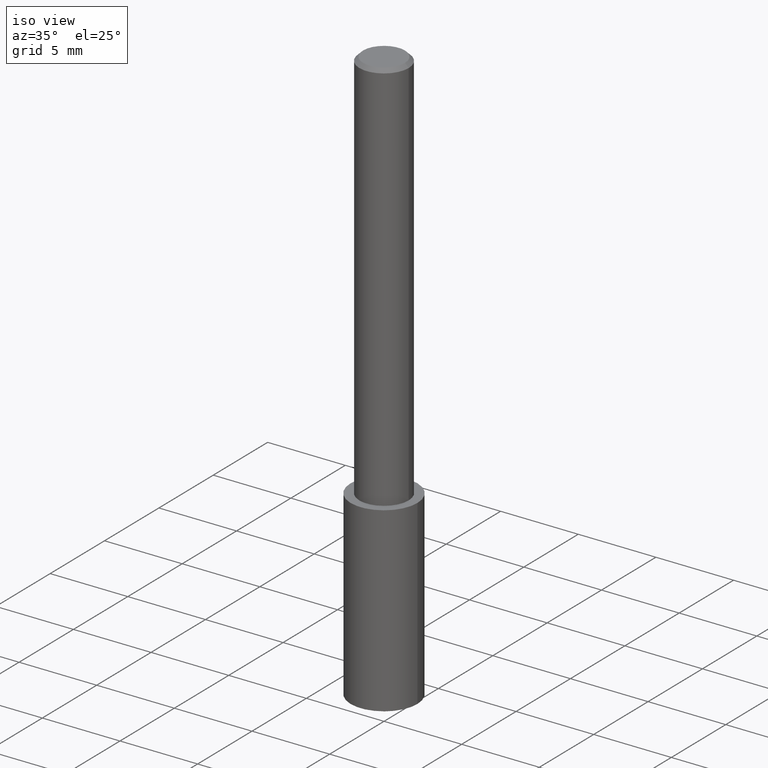
[diagram: clean part render]
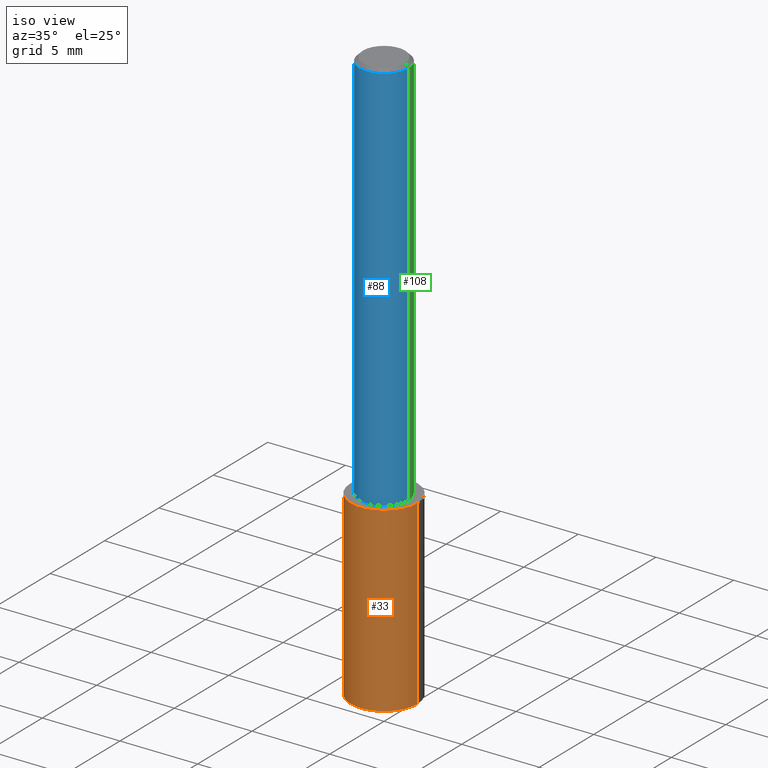
[diagram: same view with three faces highlighted in distinct colors, each labeled with its STEP entity id]
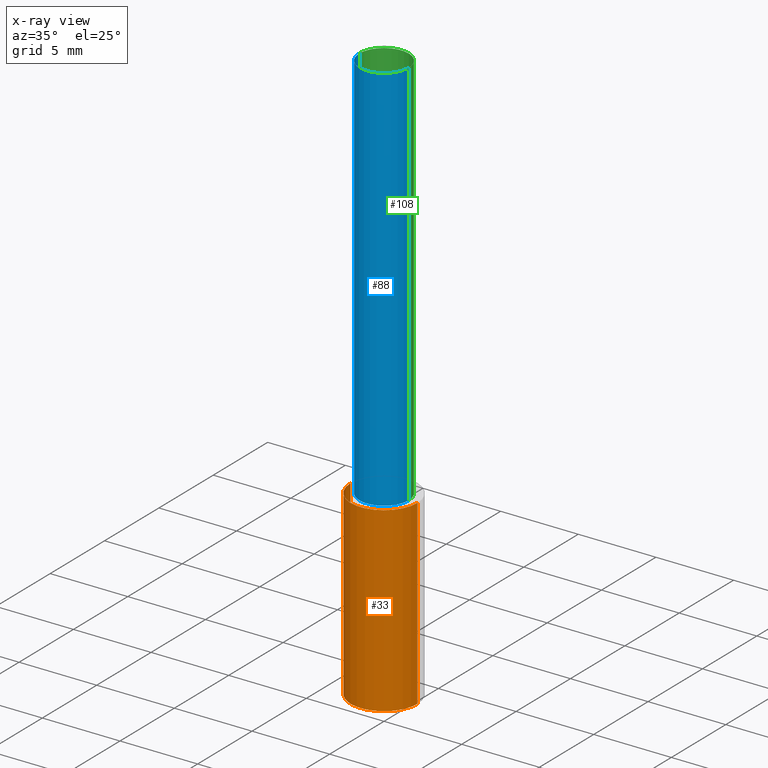
[diagram: x-ray of the same camera — body ghosted, the three highlighted faces saturated]
A machine part, iso view with three faces highlighted in distinct colors.
The next image is the same camera in x-ray (body ghosted, the three faces saturated) — at least one of them is partly hidden behind the body in this view.
Their STEP definitions:

[orange] entity #33 — the highlighted cylindrical surface (partial cylindrical patch) has radius 2.1501 mm, axis along (-0, 0, 1).
#10 = ORIENTED_EDGE ( 'NONE', *, *, #247, .F. ) ;
#14 = CARTESIAN_POINT ( 'NONE',  ( 3.571673357840160726E-29, -5.099402963473365069E-15, -1.460527056737179308 ) ) ;
#25 = DIRECTION ( 'NONE',  ( -2.445468806185136597E-29, 3.491481338843145583E-15, 1.000000000000000000 ) ) ;
#33 = ADVANCED_FACE ( 'NONE', ( #144 ), #58, .T. ) ;
#35 = CIRCLE ( 'NONE', #42, 0.08465000000000001690 ) ;
#36 = EDGE_CURVE ( 'NONE', #82, #76, #227, .T. ) ;
#42 = AXIS2_PLACEMENT_3D ( 'NONE', #262, #25, #237 ) ;
#50 = VECTOR ( 'NONE', #153, 39.37007874015748143 ) ;
#58 = CYLINDRICAL_SURFACE ( 'NONE', #179, 0.08465000000000001690 ) ;
#60 = CARTESIAN_POINT ( 'NONE',  ( 2.445468806185137438E-29, -3.491481338843146371E-15, -1.000000000000000222 ) ) ;
#76 = VERTEX_POINT ( 'NONE', #234 ) ;
#82 = VERTEX_POINT ( 'NONE', #120 ) ;
#117 = DIRECTION ( 'NONE',  ( 1.000000000000000000, -6.982962677686263555E-15, 0.000000000000000000 ) ) ;
#120 = CARTESIAN_POINT ( 'NONE',  ( -0.08464999999999998914, -4.497928537652440240E-15, -1.460527056737179308 ) ) ;
#129 = CARTESIAN_POINT ( 'NONE',  ( 0.08465000000000001690, -4.082589129509289174E-15, -1.000000000000000222 ) ) ;
#137 = AXIS2_PLACEMENT_3D ( 'NONE', #14, #208, #230 ) ;
#138 = ORIENTED_EDGE ( 'NONE', *, *, #296, .T. ) ;
#142 = VERTEX_POINT ( 'NONE', #129 ) ;
#144 = FACE_OUTER_BOUND ( 'NONE', #167, .T. ) ;
#153 = DIRECTION ( 'NONE',  ( -2.445468806185136877E-29, 3.491481338843145188E-15, 1.000000000000000000 ) ) ;
#161 = CARTESIAN_POINT ( 'NONE',  ( -0.08465000000000001690, -3.693967725337331089E-15, -1.000000000000000222 ) ) ;
#167 = EDGE_LOOP ( 'NONE', ( #10, #285, #138, #248 ) ) ;
#179 = AXIS2_PLACEMENT_3D ( 'NONE', #60, #249, #117 ) ;
#208 = DIRECTION ( 'NONE',  ( -2.445468806185136597E-29, 3.491481338843145583E-15, 1.000000000000000000 ) ) ;
#210 = VECTOR ( 'NONE', #337, 39.37007874015748143 ) ;
#212 = LINE ( 'NONE', #338, #50 ) ;
#227 = CIRCLE ( 'NONE', #137, 0.08465000000000001690 ) ;
#230 = DIRECTION ( 'NONE',  ( 1.000000000000000000, -6.982962677686269077E-15, 0.000000000000000000 ) ) ;
#234 = CARTESIAN_POINT ( 'NONE',  ( 0.08464999999999998914, -5.690510754139508265E-15, -1.460527056737179308 ) ) ;
#237 = DIRECTION ( 'NONE',  ( 1.000000000000000000, -6.982962677686269077E-15, 0.000000000000000000 ) ) ;
#247 = EDGE_CURVE ( 'NONE', #82, #268, #283, .T. ) ;
#248 = ORIENTED_EDGE ( 'NONE', *, *, #304, .F. ) ;
#249 = DIRECTION ( 'NONE',  ( -2.445468806185136597E-29, 3.491481338843145583E-15, 1.000000000000000000 ) ) ;
#262 = CARTESIAN_POINT ( 'NONE',  ( 2.445468806185136877E-29, -3.491481338843145977E-15, -1.000000000000000222 ) ) ;
#268 = VERTEX_POINT ( 'NONE', #161 ) ;
#281 = CARTESIAN_POINT ( 'NONE',  ( -0.08465000000000001690, -2.890006913022221543E-15, -1.000000000000000222 ) ) ;
#283 = LINE ( 'NONE', #281, #210 ) ;
#285 = ORIENTED_EDGE ( 'NONE', *, *, #36, .T. ) ;
#296 = EDGE_CURVE ( 'NONE', #76, #142, #212, .T. ) ;
#304 = EDGE_CURVE ( 'NONE', #268, #142, #35, .T. ) ;
#337 = DIRECTION ( 'NONE',  ( -2.445468806185136877E-29, 3.491481338843145188E-15, 1.000000000000000000 ) ) ;
#338 = CARTESIAN_POINT ( 'NONE',  ( 0.08465000000000001690, -4.082589129509289174E-15, -1.000000000000000222 ) ) ;

[blue] entity #88 — the highlighted cylindrical surface (edge-blend (fillet) strip) has radius 1.5875 mm, axis along (-0, 0, 1).
#12 = EDGE_CURVE ( 'NONE', #134, #55, #68, .T. ) ;
#16 = VECTOR ( 'NONE', #305, 39.37007874015748143 ) ;
#20 = DIRECTION ( 'NONE',  ( 1.000000000000000000, -6.982962677686266711E-15, 4.876176775795935793E-29 ) ) ;
#23 = ORIENTED_EDGE ( 'NONE', *, *, #12, .T. ) ;
#32 = ORIENTED_EDGE ( 'NONE', *, *, #94, .F. ) ;
#38 = FACE_OUTER_BOUND ( 'NONE', #222, .T. ) ;
#55 = VERTEX_POINT ( 'NONE', #229 ) ;
#56 = DIRECTION ( 'NONE',  ( -2.445468806185136597E-29, 3.491481338843145583E-15, 1.000000000000000000 ) ) ;
#68 = CIRCLE ( 'NONE', #306, 0.06250000000000012490 ) ;
#78 = EDGE_CURVE ( 'NONE', #55, #203, #280, .T. ) ;
#88 = ADVANCED_FACE ( 'NONE', ( #38 ), #259, .T. ) ;
#94 = EDGE_CURVE ( 'NONE', #134, #149, #309, .T. ) ;
#100 = DIRECTION ( 'NONE',  ( 1.000000000000000000, -6.982962677686266711E-15, 0.000000000000000000 ) ) ;
#116 = VECTOR ( 'NONE', #284, 39.37007874015748143 ) ;
#124 = CARTESIAN_POINT ( 'NONE',  ( 0.000000000000000000, 0.000000000000000000, 0.000000000000000000 ) ) ;
#134 = VERTEX_POINT ( 'NONE', #266 ) ;
#147 = DIRECTION ( 'NONE',  ( 1.000000000000000000, -6.982962677686264344E-15, 0.000000000000000000 ) ) ;
#149 = VERTEX_POINT ( 'NONE', #215 ) ;
#185 = DIRECTION ( 'NONE',  ( -2.445468806185136597E-29, 3.491481338843145583E-15, 1.000000000000000000 ) ) ;
#188 = CARTESIAN_POINT ( 'NONE',  ( -0.06250000000000006939, 4.440892098500631092E-16, -3.074334431409319267E-30 ) ) ;
#190 = ORIENTED_EDGE ( 'NONE', *, *, #78, .T. ) ;
#203 = VERTEX_POINT ( 'NONE', #236 ) ;
#207 = CARTESIAN_POINT ( 'NONE',  ( 2.445468806185137438E-29, -3.491481338843146371E-15, -1.000000000000000222 ) ) ;
#215 = CARTESIAN_POINT ( 'NONE',  ( -0.06250000000000000000, -1.318017778347336672E-15, -0.009375000000000063838 ) ) ;
#222 = EDGE_LOOP ( 'NONE', ( #32, #23, #190, #263 ) ) ;
#229 = CARTESIAN_POINT ( 'NONE',  ( 0.06250000000000012490, -3.927916506198539224E-15, -1.000000000000000222 ) ) ;
#236 = CARTESIAN_POINT ( 'NONE',  ( 0.06250000000000000000, -4.691678049070464390E-16, -0.009375000000000063838 ) ) ;
#252 = AXIS2_PLACEMENT_3D ( 'NONE', #124, #185, #20 ) ;
#258 = CIRCLE ( 'NONE', #331, 0.06250000000000000000 ) ;
#259 = CYLINDRICAL_SURFACE ( 'NONE', #252, 0.06250000000000006939 ) ;
#263 = ORIENTED_EDGE ( 'NONE', *, *, #314, .F. ) ;
#266 = CARTESIAN_POINT ( 'NONE',  ( -0.06250000000000012490, -1.318017778347335489E-15, -1.000000000000000222 ) ) ;
#269 = DIRECTION ( 'NONE',  ( -2.445468806185136597E-29, 3.491481338843145583E-15, 1.000000000000000000 ) ) ;
#280 = LINE ( 'NONE', #332, #16 ) ;
#284 = DIRECTION ( 'NONE',  ( -2.445468806185136877E-29, 3.491481338843145188E-15, 1.000000000000000000 ) ) ;
#305 = DIRECTION ( 'NONE',  ( -2.445468806185136877E-29, 3.491481338843145188E-15, 1.000000000000000000 ) ) ;
#306 = AXIS2_PLACEMENT_3D ( 'NONE', #207, #56, #147 ) ;
#309 = LINE ( 'NONE', #188, #116 ) ;
#311 = CARTESIAN_POINT ( 'NONE',  ( 2.292627005798581499E-31, -3.273263755165471417E-17, -0.009375000000000063838 ) ) ;
#314 = EDGE_CURVE ( 'NONE', #149, #203, #258, .T. ) ;
#331 = AXIS2_PLACEMENT_3D ( 'NONE', #311, #269, #100 ) ;
#332 = CARTESIAN_POINT ( 'NONE',  ( 0.06250000000000006939, -4.364351673553921624E-16, 3.047610484872463374E-30 ) ) ;

[green] entity #108 — the highlighted cylindrical surface (edge-blend (fillet) strip) has radius 1.5875 mm, axis along (-0, 0, 1).
#1 = DIRECTION ( 'NONE',  ( -2.445468806185136597E-29, 3.491481338843145583E-15, 1.000000000000000000 ) ) ;
#11 = CIRCLE ( 'NONE', #110, 0.06250000000000000000 ) ;
#16 = VECTOR ( 'NONE', #305, 39.37007874015748143 ) ;
#43 = DIRECTION ( 'NONE',  ( 1.000000000000000000, -6.982962677686266711E-15, 4.876176775795935793E-29 ) ) ;
#44 = AXIS2_PLACEMENT_3D ( 'NONE', #241, #1, #46 ) ;
#46 = DIRECTION ( 'NONE',  ( 1.000000000000000000, -6.982962677686264344E-15, 0.000000000000000000 ) ) ;
#54 = ORIENTED_EDGE ( 'NONE', *, *, #70, .F. ) ;
#55 = VERTEX_POINT ( 'NONE', #229 ) ;
#57 = CIRCLE ( 'NONE', #44, 0.06250000000000012490 ) ;
#66 = FACE_OUTER_BOUND ( 'NONE', #226, .T. ) ;
#70 = EDGE_CURVE ( 'NONE', #203, #149, #11, .T. ) ;
#78 = EDGE_CURVE ( 'NONE', #55, #203, #280, .T. ) ;
#94 = EDGE_CURVE ( 'NONE', #134, #149, #309, .T. ) ;
#97 = CYLINDRICAL_SURFACE ( 'NONE', #139, 0.06250000000000006939 ) ;
#108 = ADVANCED_FACE ( 'NONE', ( #66 ), #97, .T. ) ;
#110 = AXIS2_PLACEMENT_3D ( 'NONE', #205, #302, #175 ) ;
#116 = VECTOR ( 'NONE', #284, 39.37007874015748143 ) ;
#118 = ORIENTED_EDGE ( 'NONE', *, *, #94, .T. ) ;
#134 = VERTEX_POINT ( 'NONE', #266 ) ;
#139 = AXIS2_PLACEMENT_3D ( 'NONE', #213, #186, #43 ) ;
#149 = VERTEX_POINT ( 'NONE', #215 ) ;
#175 = DIRECTION ( 'NONE',  ( 1.000000000000000000, -6.982962677686266711E-15, 0.000000000000000000 ) ) ;
#186 = DIRECTION ( 'NONE',  ( -2.445468806185136597E-29, 3.491481338843145583E-15, 1.000000000000000000 ) ) ;
#188 = CARTESIAN_POINT ( 'NONE',  ( -0.06250000000000006939, 4.440892098500631092E-16, -3.074334431409319267E-30 ) ) ;
#203 = VERTEX_POINT ( 'NONE', #236 ) ;
#205 = CARTESIAN_POINT ( 'NONE',  ( 2.292627005798581499E-31, -3.273263755165471417E-17, -0.009375000000000063838 ) ) ;
#213 = CARTESIAN_POINT ( 'NONE',  ( 0.000000000000000000, 0.000000000000000000, 0.000000000000000000 ) ) ;
#215 = CARTESIAN_POINT ( 'NONE',  ( -0.06250000000000000000, -1.318017778347336672E-15, -0.009375000000000063838 ) ) ;
#226 = EDGE_LOOP ( 'NONE', ( #327, #118, #54, #322 ) ) ;
#229 = CARTESIAN_POINT ( 'NONE',  ( 0.06250000000000012490, -3.927916506198539224E-15, -1.000000000000000222 ) ) ;
#236 = CARTESIAN_POINT ( 'NONE',  ( 0.06250000000000000000, -4.691678049070464390E-16, -0.009375000000000063838 ) ) ;
#241 = CARTESIAN_POINT ( 'NONE',  ( 2.445468806185137438E-29, -3.491481338843146371E-15, -1.000000000000000222 ) ) ;
#266 = CARTESIAN_POINT ( 'NONE',  ( -0.06250000000000012490, -1.318017778347335489E-15, -1.000000000000000222 ) ) ;
#280 = LINE ( 'NONE', #332, #16 ) ;
#284 = DIRECTION ( 'NONE',  ( -2.445468806185136877E-29, 3.491481338843145188E-15, 1.000000000000000000 ) ) ;
#288 = EDGE_CURVE ( 'NONE', #55, #134, #57, .T. ) ;
#302 = DIRECTION ( 'NONE',  ( -2.445468806185136597E-29, 3.491481338843145583E-15, 1.000000000000000000 ) ) ;
#305 = DIRECTION ( 'NONE',  ( -2.445468806185136877E-29, 3.491481338843145188E-15, 1.000000000000000000 ) ) ;
#309 = LINE ( 'NONE', #188, #116 ) ;
#322 = ORIENTED_EDGE ( 'NONE', *, *, #78, .F. ) ;
#327 = ORIENTED_EDGE ( 'NONE', *, *, #288, .T. ) ;
#332 = CARTESIAN_POINT ( 'NONE',  ( 0.06250000000000006939, -4.364351673553921624E-16, 3.047610484872463374E-30 ) ) ;